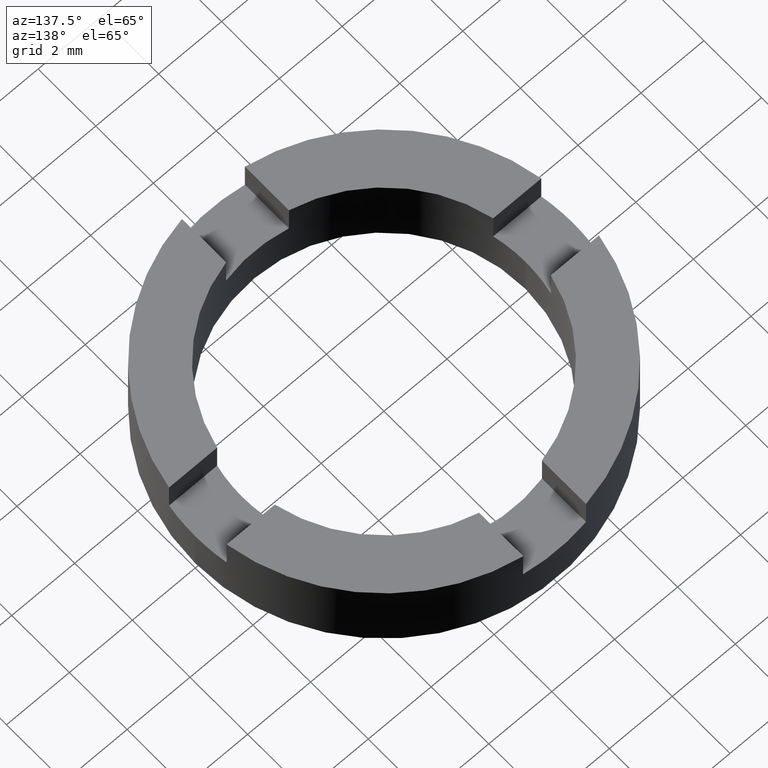
[diagram: clean part render]
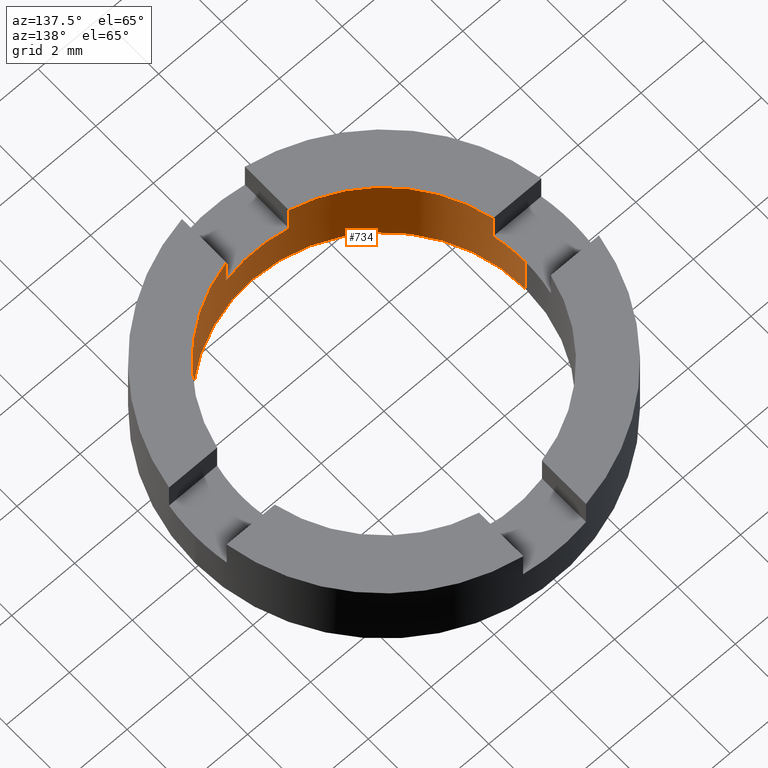
[diagram: same view with one face highlighted and labeled with its STEP entity id]
A machine part, auxiliary view. The second image highlights one B-rep face of the part: STEP entity #734.
In plain terms, the highlighted cylindrical surface (partial cylindrical patch) has radius 4.5 mm, axis along (-0, -0, -1).
Its self-contained STEP definition (entity closure, byte-faithful):
#1 = CARTESIAN_POINT ( 'NONE',  ( -4.387482193696063071, -0.9999999999999847899, 1.500000000000000000 ) ) ;
#5 = CARTESIAN_POINT ( 'NONE',  ( -4.387482193696063959, -0.9999999999999850120, 1.500000000000000000 ) ) ;
#8 = CARTESIAN_POINT ( 'NONE',  ( -4.500000000000000000, 0.000000000000000000, 0.000000000000000000 ) ) ;
#9 = EDGE_CURVE ( 'NONE', #337, #473, #599, .T. ) ;
#10 = CARTESIAN_POINT ( 'NONE',  ( -0.9999999999999986677, -4.387482193696060406, 1.500000000000000000 ) ) ;
#38 = DIRECTION ( 'NONE',  ( -0.000000000000000000, -0.000000000000000000, 1.000000000000000000 ) ) ;
#39 = DIRECTION ( 'NONE',  ( -1.000000000000000000, 0.000000000000000000, 0.000000000000000000 ) ) ;
#42 = DIRECTION ( 'NONE',  ( -0.000000000000000000, -0.000000000000000000, 1.000000000000000000 ) ) ;
#45 = AXIS2_PLACEMENT_3D ( 'NONE', #533, #468, #669 ) ;
#47 = DIRECTION ( 'NONE',  ( -0.000000000000000000, -0.000000000000000000, -1.000000000000000000 ) ) ;
#59 = CARTESIAN_POINT ( 'NONE',  ( -4.500000000000000000, 0.000000000000000000, 1.500000000000000000 ) ) ;
#63 = CIRCLE ( 'NONE', #45, 4.500000000000000000 ) ;
#65 = CIRCLE ( 'NONE', #684, 4.500000000000000000 ) ;
#86 = VECTOR ( 'NONE', #312, 1000.000000000000000 ) ;
#87 = VERTEX_POINT ( 'NONE', #722 ) ;
#95 = ORIENTED_EDGE ( 'NONE', *, *, #371, .F. ) ;
#96 = FACE_OUTER_BOUND ( 'NONE', #475, .T. ) ;
#104 = CIRCLE ( 'NONE', #718, 4.500000000000000000 ) ;
#105 = ORIENTED_EDGE ( 'NONE', *, *, #164, .F. ) ;
#109 = VECTOR ( 'NONE', #779, 1000.000000000000000 ) ;
#110 = ORIENTED_EDGE ( 'NONE', *, *, #691, .F. ) ;
#112 = ORIENTED_EDGE ( 'NONE', *, *, #179, .F. ) ;
#120 = ORIENTED_EDGE ( 'NONE', *, *, #782, .T. ) ;
#125 = CARTESIAN_POINT ( 'NONE',  ( 1.000000000000001332, -4.387482193696059518, 2.500000000000000000 ) ) ;
#142 = VERTEX_POINT ( 'NONE', #241 ) ;
#151 = VECTOR ( 'NONE', #38, 1000.000000000000000 ) ;
#153 = AXIS2_PLACEMENT_3D ( 'NONE', #550, #513, #626 ) ;
#163 = CARTESIAN_POINT ( 'NONE',  ( 4.500000000000000000, 5.510910596163088569E-16, 1.500000000000000000 ) ) ;
#164 = EDGE_CURVE ( 'NONE', #412, #87, #63, .T. ) ;
#179 = EDGE_CURVE ( 'NONE', #234, #438, #329, .T. ) ;
#189 = DIRECTION ( 'NONE',  ( -0.000000000000000000, -0.000000000000000000, -1.000000000000000000 ) ) ;
#203 = AXIS2_PLACEMENT_3D ( 'NONE', #422, #268, #564 ) ;
#205 = EDGE_CURVE ( 'NONE', #206, #653, #579, .T. ) ;
#206 = VERTEX_POINT ( 'NONE', #252 ) ;
#216 = VERTEX_POINT ( 'NONE', #600 ) ;
#224 = CARTESIAN_POINT ( 'NONE',  ( 4.500000000000000000, 5.510910596163088569E-16, 2.500000000000000000 ) ) ;
#234 = VERTEX_POINT ( 'NONE', #10 ) ;
#241 = CARTESIAN_POINT ( 'NONE',  ( -4.387482193696063071, -0.9999999999999847899, 2.500000000000000000 ) ) ;
#252 = CARTESIAN_POINT ( 'NONE',  ( 1.000000000000001332, -4.387482193696059518, 1.500000000000000000 ) ) ;
#258 = DIRECTION ( 'NONE',  ( 0.000000000000000000, -0.000000000000000000, -1.000000000000000000 ) ) ;
#260 = EDGE_CURVE ( 'NONE', #653, #481, #582, .T. ) ;
#267 = EDGE_CURVE ( 'NONE', #412, #216, #586, .T. ) ;
#268 = DIRECTION ( 'NONE',  ( 0.000000000000000000, -0.000000000000000000, -1.000000000000000000 ) ) ;
#303 = AXIS2_PLACEMENT_3D ( 'NONE', #307, #548, #515 ) ;
#307 = CARTESIAN_POINT ( 'NONE',  ( 0.000000000000000000, 0.000000000000000000, 2.500000000000000000 ) ) ;
#312 = DIRECTION ( 'NONE',  ( -0.000000000000000000, -0.000000000000000000, -1.000000000000000000 ) ) ;
#329 = LINE ( 'NONE', #545, #347 ) ;
#337 = VERTEX_POINT ( 'NONE', #5 ) ;
#347 = VECTOR ( 'NONE', #42, 1000.000000000000000 ) ;
#348 = CARTESIAN_POINT ( 'NONE',  ( 0.000000000000000000, 0.000000000000000000, 1.500000000000000000 ) ) ;
#371 = EDGE_CURVE ( 'NONE', #469, #216, #65, .T. ) ;
#407 = ORIENTED_EDGE ( 'NONE', *, *, #454, .T. ) ;
#410 = ORIENTED_EDGE ( 'NONE', *, *, #260, .T. ) ;
#411 = VECTOR ( 'NONE', #189, 1000.000000000000000 ) ;
#412 = VERTEX_POINT ( 'NONE', #163 ) ;
#421 = DIRECTION ( 'NONE',  ( 1.000000000000000000, 0.000000000000000000, 0.000000000000000000 ) ) ;
#422 = CARTESIAN_POINT ( 'NONE',  ( 0.000000000000000000, 0.000000000000000000, 1.500000000000000000 ) ) ;
#435 = CARTESIAN_POINT ( 'NONE',  ( 0.000000000000000000, 0.000000000000000000, 2.500000000000000000 ) ) ;
#438 = VERTEX_POINT ( 'NONE', #510 ) ;
#443 = DIRECTION ( 'NONE',  ( 0.000000000000000000, 0.000000000000000000, 1.000000000000000000 ) ) ;
#447 = EDGE_CURVE ( 'NONE', #206, #234, #104, .T. ) ;
#454 = EDGE_CURVE ( 'NONE', #142, #438, #645, .T. ) ;
#467 = ORIENTED_EDGE ( 'NONE', *, *, #9, .F. ) ;
#468 = DIRECTION ( 'NONE',  ( 0.000000000000000000, -0.000000000000000000, -1.000000000000000000 ) ) ;
#469 = VERTEX_POINT ( 'NONE', #8 ) ;
#473 = VERTEX_POINT ( 'NONE', #59 ) ;
#475 = EDGE_LOOP ( 'NONE', ( #105, #612, #95, #479, #467, #120, #407, #112, #628, #676, #410, #110 ) ) ;
#479 = ORIENTED_EDGE ( 'NONE', *, *, #749, .F. ) ;
#481 = VERTEX_POINT ( 'NONE', #539 ) ;
#508 = CARTESIAN_POINT ( 'NONE',  ( 0.000000000000000000, 0.000000000000000000, 0.000000000000000000 ) ) ;
#510 = CARTESIAN_POINT ( 'NONE',  ( -0.9999999999999986677, -4.387482193696060406, 2.500000000000000000 ) ) ;
#513 = DIRECTION ( 'NONE',  ( 0.000000000000000000, 0.000000000000000000, 1.000000000000000000 ) ) ;
#515 = DIRECTION ( 'NONE',  ( 1.000000000000000000, 0.000000000000000000, 0.000000000000000000 ) ) ;
#533 = CARTESIAN_POINT ( 'NONE',  ( 0.000000000000000000, 0.000000000000000000, 1.500000000000000000 ) ) ;
#539 = CARTESIAN_POINT ( 'NONE',  ( 4.387482193696056854, -1.000000000000017319, 2.500000000000000000 ) ) ;
#545 = CARTESIAN_POINT ( 'NONE',  ( -0.9999999999999986677, -4.387482193696060406, 1.500000000000000000 ) ) ;
#548 = DIRECTION ( 'NONE',  ( 0.000000000000000000, 0.000000000000000000, 1.000000000000000000 ) ) ;
#550 = CARTESIAN_POINT ( 'NONE',  ( 0.000000000000000000, 0.000000000000000000, 2.500000000000000000 ) ) ;
#553 = DIRECTION ( 'NONE',  ( 1.000000000000000000, 0.000000000000000000, 0.000000000000000000 ) ) ;
#564 = DIRECTION ( 'NONE',  ( 1.000000000000000000, 0.000000000000000000, 0.000000000000000000 ) ) ;
#579 = LINE ( 'NONE', #592, #591 ) ;
#582 = CIRCLE ( 'NONE', #153, 4.500000000000000000 ) ;
#586 = LINE ( 'NONE', #224, #86 ) ;
#590 = CARTESIAN_POINT ( 'NONE',  ( -4.500000000000000000, 0.000000000000000000, 2.500000000000000000 ) ) ;
#591 = VECTOR ( 'NONE', #690, 1000.000000000000000 ) ;
#592 = CARTESIAN_POINT ( 'NONE',  ( 1.000000000000001332, -4.387482193696059518, 1.500000000000000000 ) ) ;
#599 = CIRCLE ( 'NONE', #203, 4.500000000000000000 ) ;
#600 = CARTESIAN_POINT ( 'NONE',  ( 4.500000000000000000, 5.510910596163088569E-16, 0.000000000000000000 ) ) ;
#612 = ORIENTED_EDGE ( 'NONE', *, *, #267, .T. ) ;
#624 = LINE ( 'NONE', #590, #411 ) ;
#626 = DIRECTION ( 'NONE',  ( 1.000000000000000000, 0.000000000000000000, 0.000000000000000000 ) ) ;
#628 = ORIENTED_EDGE ( 'NONE', *, *, #447, .F. ) ;
#640 = CYLINDRICAL_SURFACE ( 'NONE', #673, 4.500000000000000000 ) ;
#645 = CIRCLE ( 'NONE', #303, 4.500000000000000000 ) ;
#653 = VERTEX_POINT ( 'NONE', #125 ) ;
#664 = LINE ( 'NONE', #772, #109 ) ;
#669 = DIRECTION ( 'NONE',  ( 1.000000000000000000, 0.000000000000000000, 0.000000000000000000 ) ) ;
#673 = AXIS2_PLACEMENT_3D ( 'NONE', #435, #47, #39 ) ;
#676 = ORIENTED_EDGE ( 'NONE', *, *, #205, .T. ) ;
#678 = LINE ( 'NONE', #1, #151 ) ;
#684 = AXIS2_PLACEMENT_3D ( 'NONE', #508, #443, #421 ) ;
#690 = DIRECTION ( 'NONE',  ( -0.000000000000000000, -0.000000000000000000, 1.000000000000000000 ) ) ;
#691 = EDGE_CURVE ( 'NONE', #87, #481, #664, .T. ) ;
#718 = AXIS2_PLACEMENT_3D ( 'NONE', #348, #258, #553 ) ;
#722 = CARTESIAN_POINT ( 'NONE',  ( 4.387482193696056854, -1.000000000000017319, 1.500000000000000000 ) ) ;
#734 = ADVANCED_FACE ( 'NONE', ( #96 ), #640, .F. ) ;
#749 = EDGE_CURVE ( 'NONE', #473, #469, #624, .T. ) ;
#772 = CARTESIAN_POINT ( 'NONE',  ( 4.387482193696056854, -1.000000000000017319, 1.500000000000000000 ) ) ;
#779 = DIRECTION ( 'NONE',  ( -0.000000000000000000, -0.000000000000000000, 1.000000000000000000 ) ) ;
#782 = EDGE_CURVE ( 'NONE', #337, #142, #678, .T. ) ;